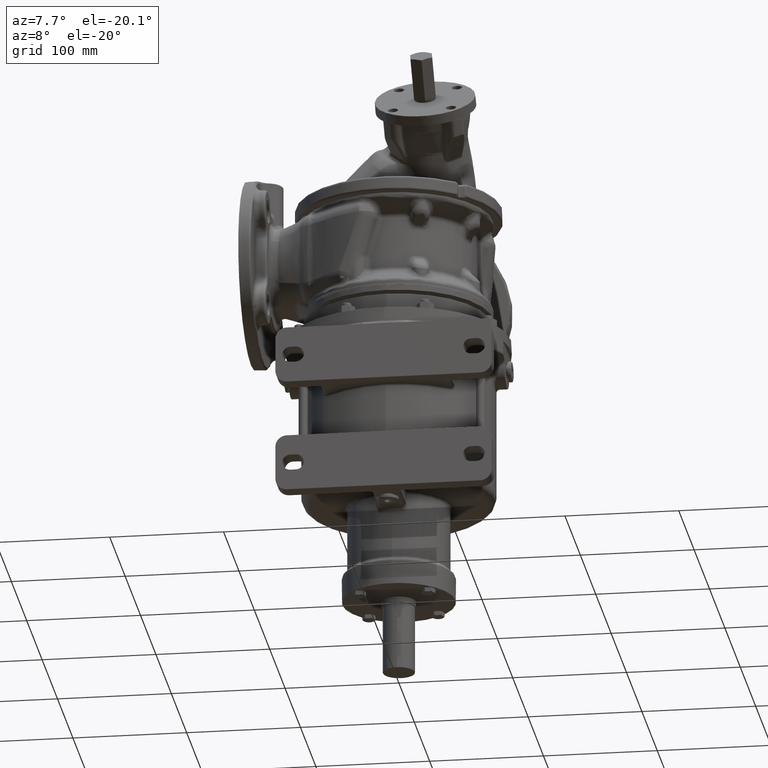
[diagram: clean part render]
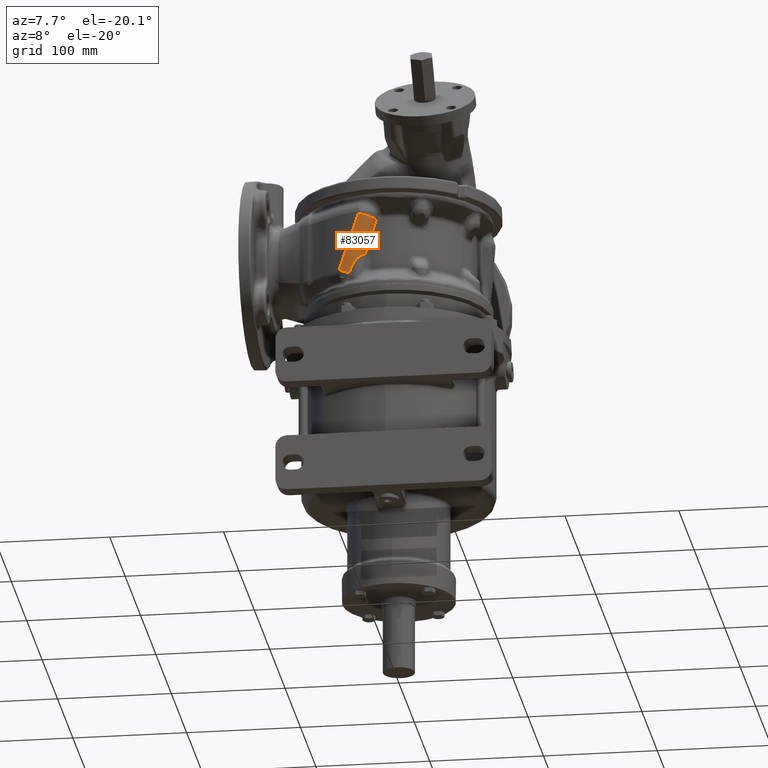
[diagram: same view with one face highlighted and labeled with its STEP entity id]
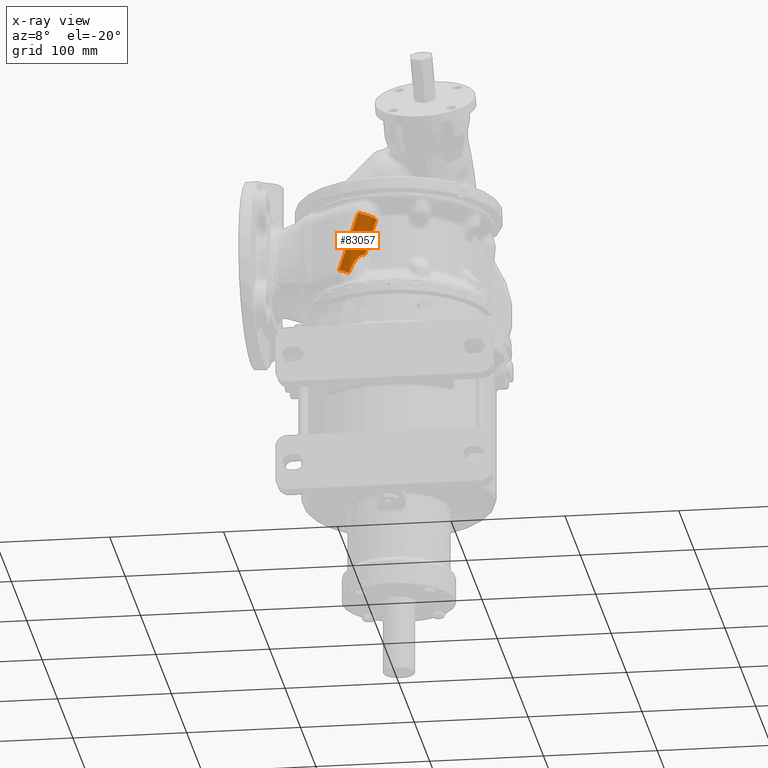
[diagram: x-ray of the same camera — body ghosted, the highlighted face saturated]
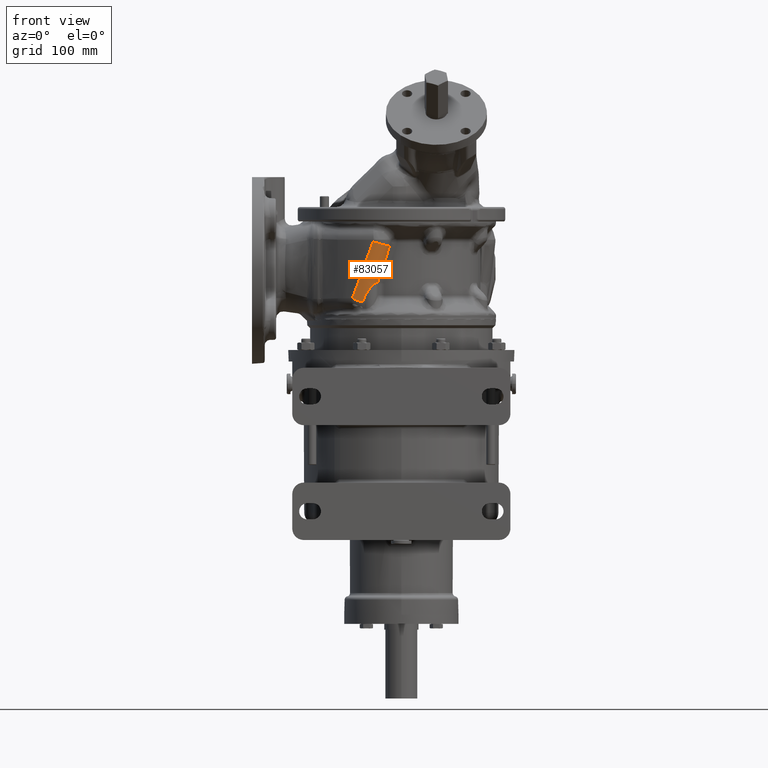
[diagram: same view with one face highlighted and labeled with its STEP entity id]
A machine part, auxiliary view. The second image highlights one B-rep face of the part: STEP entity #83057.
The next image is the same camera in x-ray: the body ghosted, the highlighted face saturated — about 0% of this face is hidden behind the body in this view.
A second angle (front view) of the same face is appended — the face is thin or edge-on in the first view.
In plain terms, the highlighted face is a freeform B-spline surface patch.
Its self-contained STEP definition (entity closure, byte-faithful):
#25267=CARTESIAN_POINT('',(-2.119083752131E1,-6.985662749622E1,
1.042988725771E2));
#25268=DIRECTION('',(-2.879499086329E-1,8.734890227052E-2,-9.536535111824E-1));
#25269=DIRECTION('',(9.251479776204E-1,-2.318483130488E-1,-3.005787405012E-1));
#25270=AXIS2_PLACEMENT_3D('',#25267,#25268,#25269);
#25277=CARTESIAN_POINT('',(-1.008906234369E1,-7.263880723871E1,
1.006919259756E2));
#25278=CARTESIAN_POINT('',(-1.078985260738E1,-7.254187529447E1,
9.846020433997E1));
#25279=CARTESIAN_POINT('',(-1.218267550414E1,-7.232862307558E1,
9.405559749812E1));
#25280=CARTESIAN_POINT('',(-1.424532093371E1,-7.195198624823E1,
8.762368334753E1));
#25281=CARTESIAN_POINT('',(-1.627874109743E1,-7.152073411645E1,
8.137264760107E1));
#25282=CARTESIAN_POINT('',(-1.828099006842E1,-7.103676528257E1,
7.530575880703E1));
#25283=CARTESIAN_POINT('',(-1.959321880926E1,-7.068062706580E1,
7.138771460428E1));
#25284=CARTESIAN_POINT('',(-2.024361991527E1,-7.049447879599E1,
6.946001937875E1));
#25286=CARTESIAN_POINT('',(-2.024361991527E1,-7.049447879599E1,
6.946001937875E1));
#25287=CARTESIAN_POINT('',(-2.028265244141E1,-7.057944893489E1,
6.944840208399E1));
#25288=CARTESIAN_POINT('',(-2.036385460238E1,-7.074851614572E1,
6.942259061334E1));
#25289=CARTESIAN_POINT('',(-2.049507986479E1,-7.099948136310E1,
6.937626179124E1));
#25290=CARTESIAN_POINT('',(-2.063560375749E1,-7.124704550409E1,
6.932200517078E1));
#25291=CARTESIAN_POINT('',(-2.078523971666E1,-7.149068710334E1,
6.925979353663E1));
#25292=CARTESIAN_POINT('',(-2.094375516216E1,-7.172984149864E1,
6.918954576563E1));
#25293=CARTESIAN_POINT('',(-2.111083589559E1,-7.196394059939E1,
6.911122346792E1));
#25294=CARTESIAN_POINT('',(-2.128647831170E1,-7.219291817449E1,
6.902465227762E1));
#25295=CARTESIAN_POINT('',(-2.147075879238E1,-7.241664083491E1,
6.892938874187E1));
#25296=CARTESIAN_POINT('',(-2.166363163958E1,-7.263491901958E1,
6.882519848515E1));
#25297=CARTESIAN_POINT('',(-2.186486209540E1,-7.284734901682E1,
6.871190175931E1));
#25298=CARTESIAN_POINT('',(-2.207416042233E1,-7.305351257679E1,
6.858930819848E1));
#25299=CARTESIAN_POINT('',(-2.229147786662E1,-7.325325120590E1,
6.845705078865E1));
#25300=CARTESIAN_POINT('',(-2.251682722843E1,-7.344638342729E1,
6.831457562305E1));
#25301=CARTESIAN_POINT('',(-2.275014119181E1,-7.363266867245E1,
6.816137341519E1));
#25302=CARTESIAN_POINT('',(-2.299129168347E1,-7.381190247343E1,
6.799710567792E1));
#25303=CARTESIAN_POINT('',(-2.324004900509E1,-7.398376623115E1,
6.782136529044E1));
#25304=CARTESIAN_POINT('',(-2.349643277534E1,-7.414810328202E1,
6.763348836223E1));
#25305=CARTESIAN_POINT('',(-2.376054178047E1,-7.430471395271E1,
6.743255228323E1));
#25306=CARTESIAN_POINT('',(-2.403238886517E1,-7.445335409061E1,
6.721769147344E1));
#25307=CARTESIAN_POINT('',(-2.431209425346E1,-7.459392638869E1,
6.698814963770E1));
#25308=CARTESIAN_POINT('',(-2.459963358144E1,-7.472617266228E1,
6.674308490818E1));
#25309=CARTESIAN_POINT('',(-2.489502644255E1,-7.484981101837E1,
6.648146234595E1));
#25310=CARTESIAN_POINT('',(-2.519829094349E1,-7.496447746739E1,
6.620200973924E1));
#25311=CARTESIAN_POINT('',(-2.550917950597E1,-7.506964889420E1,
6.590342122374E1));
#25312=CARTESIAN_POINT('',(-2.582885716744E1,-7.516549524378E1,
6.558360625117E1));
#25313=CARTESIAN_POINT('',(-2.615834389968E1,-7.525179686821E1,
6.523995288591E1));
#25314=CARTESIAN_POINT('',(-2.649773686445E1,-7.532798297398E1,
6.487056117297E1));
#25315=CARTESIAN_POINT('',(-2.684640504086E1,-7.539329892803E1,
6.447410117863E1));
#25316=CARTESIAN_POINT('',(-2.720384909244E1,-7.544702151187E1,
6.404880130017E1));
#25317=CARTESIAN_POINT('',(-2.757176776660E1,-7.548892548170E1,
6.359075501701E1));
#25318=CARTESIAN_POINT('',(-2.795116245173E1,-7.551823679605E1,
6.309572943665E1));
#25319=CARTESIAN_POINT('',(-2.834303405104E1,-7.553409602044E1,
6.255924872507E1));
#25320=CARTESIAN_POINT('',(-2.874797292995E1,-7.553547612549E1,
6.197691988562E1));
#25321=CARTESIAN_POINT('',(-2.916656786881E1,-7.552142406911E1,
6.134455744594E1));
#25322=CARTESIAN_POINT('',(-2.959896555483E1,-7.549059241117E1,
6.065719835102E1));
#25323=CARTESIAN_POINT('',(-3.004728987266E1,-7.544124744280E1,
5.990586808466E1));
#25324=CARTESIAN_POINT('',(-3.051352514976E1,-7.537147950794E1,
5.908140055060E1));
#25325=CARTESIAN_POINT('',(-3.099920843140E1,-7.527956301734E1,
5.817607391414E1));
#25326=CARTESIAN_POINT('',(-3.150597701057E1,-7.516248469024E1,
5.717774753204E1));
#25327=CARTESIAN_POINT('',(-3.203686068142E1,-7.501645254797E1,
5.607021893917E1));
#25328=CARTESIAN_POINT('',(-3.259513187581E1,-7.483785329357E1,
5.483849955027E1));
#25329=CARTESIAN_POINT('',(-3.318151078784E1,-7.462227332994E1,
5.346819274897E1));
#25330=CARTESIAN_POINT('',(-3.359258184066E1,-7.444988090632E1,
5.244865899843E1));
#25331=CARTESIAN_POINT('',(-3.380223933863E1,-7.435624518461E1,
5.191304944192E1));
#25333=CARTESIAN_POINT('',(-3.667130849395E1,-6.312064089320E1,
5.500002985504E1));
#25334=DIRECTION('',(3.071230605109E-1,-1.784297810731E-1,9.347931530176E-1));
#25335=DIRECTION('',(-5.023468348818E-1,-8.646662116009E-1,1.011235391720E-7));
#25336=AXIS2_PLACEMENT_3D('',#25333,#25334,#25335);
#26379=CARTESIAN_POINT('',(-4.269944369048E1,-7.349664824391E1,
5.499999200270E1));
#26380=CARTESIAN_POINT('',(-4.209453329801E1,-7.384808653237E1,
5.658122839575E1));
#26381=CARTESIAN_POINT('',(-4.087008063219E1,-7.453947813007E1,
5.979865612843E1));
#26382=CARTESIAN_POINT('',(-3.898993990028E1,-7.554013039292E1,
6.478936256183E1));
#26383=CARTESIAN_POINT('',(-3.706658945437E1,-7.650244973930E1,
6.994569092434E1));
#26384=CARTESIAN_POINT('',(-3.510053001209E1,-7.742440671011E1,
7.526769913601E1));
#26385=CARTESIAN_POINT('',(-3.309366089375E1,-7.830340906169E1,
8.075171796280E1));
#26386=CARTESIAN_POINT('',(-3.104666102593E1,-7.913752173536E1,
8.639719865210E1));
#26387=CARTESIAN_POINT('',(-2.896117818556E1,-7.992446256467E1,
9.220094422953E1));
#26388=CARTESIAN_POINT('',(-2.683867042338E1,-8.066214806754E1,
9.816019236751E1));
#26389=CARTESIAN_POINT('',(-2.539968859124E1,-8.111985255854E1,
1.022355281543E2));
#26390=CARTESIAN_POINT('',(-2.467426278014E1,-8.133990875491E1,
1.042988728250E2));
#44554=CARTESIAN_POINT('',(-4.269948010280E1,-7.349662848696E1,5.5E1));
#44555=VERTEX_POINT('',#44554);
#44830=VERTEX_POINT('',#26390);
#44847=VERTEX_POINT('',#25277);
#44848=VERTEX_POINT('',#25284);
#44944=VERTEX_POINT('',#25331);
#83005=CARTESIAN_POINT('',(-4.321399120608E1,-7.318807611986E1,
5.466259430350E1));
#83006=CARTESIAN_POINT('',(-4.235163491187E1,-7.369200024666E1,
5.728453560651E1));
#83007=CARTESIAN_POINT('',(-4.055229731575E1,-7.469463418803E1,
6.280246936697E1));
#83008=CARTESIAN_POINT('',(-3.789879776885E1,-7.603417178491E1,
7.107413415755E1));
#83009=CARTESIAN_POINT('',(-3.527877044731E1,-7.722725780911E1,
7.936659680613E1));
#83010=CARTESIAN_POINT('',(-3.272875193424E1,-7.827564143915E1,
8.754645758262E1));
#83011=CARTESIAN_POINT('',(-3.008765994574E1,-7.925002039021E1,
9.612611072789E1));
#83012=CARTESIAN_POINT('',(-2.823209977318E1,-7.985348006960E1,
1.022322930981E2));
#83013=CARTESIAN_POINT('',(-2.723159752710E1,-8.015581169475E1,
1.055469579723E2));
#83014=CARTESIAN_POINT('',(-2.718117428830E1,-8.017098989786E1,
1.057140668938E2));
#83015=CARTESIAN_POINT('',(-3.604097047749E1,-7.774151750981E1,
5.142825197833E1));
#83016=CARTESIAN_POINT('',(-3.516556491972E1,-7.825306726286E1,
5.408986857678E1));
#83017=CARTESIAN_POINT('',(-3.334042465990E1,-7.927004532447E1,
5.968696259730E1));
#83018=CARTESIAN_POINT('',(-3.065245858393E1,-8.062693784992E1,
6.806611166231E1));
#83019=CARTESIAN_POINT('',(-2.800133303772E1,-8.183415522696E1,
7.645702997284E1));
#83020=CARTESIAN_POINT('',(-2.542331712615E1,-8.289402779939E1,
8.472672066434E1));
#83021=CARTESIAN_POINT('',(-2.275523332862E1,-8.387834484658E1,
9.339407669344E1));
#83022=CARTESIAN_POINT('',(-2.088200964856E1,-8.448753470712E1,
9.955839903383E1));
#83023=CARTESIAN_POINT('',(-1.987230823013E1,-8.479264616760E1,
1.029035407449E2));
#83024=CARTESIAN_POINT('',(-1.982142219271E1,-8.480796368646E1,
1.030721834332E2));
#83025=CARTESIAN_POINT('',(-2.795020818266E1,-7.408781017670E1,
4.946942245108E1));
#83026=CARTESIAN_POINT('',(-2.707779678428E1,-7.459761022638E1,
5.212193553517E1));
#83027=CARTESIAN_POINT('',(-2.525857695724E1,-7.561129702315E1,
5.770086619844E1));
#83028=CARTESIAN_POINT('',(-2.257851924185E1,-7.696420745245E1,
6.605535294837E1));
#83029=CARTESIAN_POINT('',(-1.993452919727E1,-7.816818238422E1,
7.442368056302E1));
#83030=CARTESIAN_POINT('',(-1.736293730137E1,-7.922541881366E1,
8.267275974015E1));
#83031=CARTESIAN_POINT('',(-1.470104678655E1,-8.020745556022E1,
9.131999230313E1));
#83032=CARTESIAN_POINT('',(-1.283187600623E1,-8.081533062812E1,
9.747097440124E1));
#83033=CARTESIAN_POINT('',(-1.182428534202E1,-8.111980425414E1,
1.008091231884E2));
#83034=CARTESIAN_POINT('',(-1.177350549396E1,-8.113508980694E1,
1.009774139532E2));
#83035=CARTESIAN_POINT('',(-2.577739368519E1,-6.531388307043E1,
5.044107340918E1));
#83036=CARTESIAN_POINT('',(-2.492149017630E1,-6.581403636917E1,
5.304339550817E1));
#83037=CARTESIAN_POINT('',(-2.313491184808E1,-6.680957722608E1,
5.852218497810E1));
#83038=CARTESIAN_POINT('',(-2.049845580036E1,-6.814053291122E1,
6.674069941692E1));
#83039=CARTESIAN_POINT('',(-1.789380637097E1,-6.932663106320E1,
7.498447631038E1));
#83040=CARTESIAN_POINT('',(-1.535763240945E1,-7.036933347771E1,
8.311991671369E1));
#83041=CARTESIAN_POINT('',(-1.272988771433E1,-7.133879809775E1,
9.165620129040E1));
#83042=CARTESIAN_POINT('',(-1.088306204401E1,-7.193942423571E1,
9.773363378181E1));
#83043=CARTESIAN_POINT('',(-9.887108735432E0,-7.224038124838E1,
1.010332280365E2));
#83044=CARTESIAN_POINT('',(-9.836914347879E0,-7.225549056065E1,
1.011995785192E2));
#83045=(BOUNDED_SURFACE()B_SPLINE_SURFACE(3,3,((#83005,#83006,#83007,#83008,
#83009,#83010,#83011,#83012,#83013,#83014),(#83015,#83016,#83017,#83018,#83019,
#83020,#83021,#83022,#83023,#83024),(#83025,#83026,#83027,#83028,#83029,#83030,
#83031,#83032,#83033,#83034),(#83035,#83036,#83037,#83038,#83039,#83040,#83041,
#83042,#83043,#83044)),.UNSPECIFIED.,.F.,.F.,.F.)B_SPLINE_SURFACE_WITH_KNOTS((4,
4),(4,1,1,1,1,1,1,4),(0.E0,1.E0),(9.115155240984E-1,9.254000502088E-1,
9.406837971689E-1,9.551018750252E-1,9.689772895983E-1,9.835735070431E-1,1.E0,
1.000872069491E0),.UNSPECIFIED.)GEOMETRIC_REPRESENTATION_ITEM()RATIONAL_B_SPLINE_SURFACE(((1.267778940437E0,1.267778940437E0,1.267778940437E0,1.267778940437E0,
1.267778940437E0,1.267778940437E0,1.267778940437E0,1.267778940437E0,
1.267778940437E0,1.267778940437E0),(9.107403531877E-1,9.107403531877E-1,
9.107403531877E-1,9.107403531877E-1,9.107403531877E-1,9.107403531877E-1,
9.107403531877E-1,9.107403531877E-1,9.107403531877E-1,9.107403531877E-1),(
9.107403531877E-1,9.107403531877E-1,9.107403531877E-1,9.107403531877E-1,
9.107403531877E-1,9.107403531877E-1,9.107403531877E-1,9.107403531877E-1,
9.107403531877E-1,9.107403531877E-1),(1.267778940437E0,1.267778940437E0,
1.267778940437E0,1.267778940437E0,1.267778940437E0,1.267778940437E0,
1.267778940437E0,1.267778940437E0,1.267778940437E0,1.267778940437E0)))REPRESENTATION_ITEM('')SURFACE());
#83047=ORIENTED_EDGE('',*,*,#83046,.T.);
#83049=ORIENTED_EDGE('',*,*,#83048,.T.);
#83051=ORIENTED_EDGE('',*,*,#83050,.F.);
#83053=ORIENTED_EDGE('',*,*,#83052,.T.);
#83054=ORIENTED_EDGE('',*,*,#82997,.F.);
#83055=EDGE_LOOP('',(#83047,#83049,#83051,#83053,#83054));
#83056=FACE_OUTER_BOUND('',#83055,.F.);
#83057=ADVANCED_FACE('',(#83056),#83045,.T.);
#25271=CIRCLE('',#25270,1.2E1);
#25285=B_SPLINE_CURVE_WITH_KNOTS('',3,(#25277,#25278,#25279,#25280,#25281,
#25282,#25283,#25284),.UNSPECIFIED.,.F.,.F.,(4,1,1,1,1,4),(0.E0,2.E-1,4.E-1,
6.E-1,8.E-1,1.E0),.UNSPECIFIED.);
#25332=B_SPLINE_CURVE_WITH_KNOTS('',3,(#25286,#25287,#25288,#25289,#25290,
#25291,#25292,#25293,#25294,#25295,#25296,#25297,#25298,#25299,#25300,#25301,
#25302,#25303,#25304,#25305,#25306,#25307,#25308,#25309,#25310,#25311,#25312,
#25313,#25314,#25315,#25316,#25317,#25318,#25319,#25320,#25321,#25322,#25323,
#25324,#25325,#25326,#25327,#25328,#25329,#25330,#25331),.UNSPECIFIED.,.F.,.F.,(
4,1,1,1,1,1,1,1,1,1,1,1,1,1,1,1,1,1,1,1,1,1,1,1,1,1,1,1,1,1,1,1,1,1,1,1,1,1,1,1,
1,1,1,4),(0.E0,2.325581395349E-2,4.651162790698E-2,6.976744186047E-2,
9.302325581395E-2,1.162790697674E-1,1.395348837209E-1,1.627906976744E-1,
1.860465116279E-1,2.093023255814E-1,2.325581395349E-1,2.558139534884E-1,
2.790697674419E-1,3.023255813953E-1,3.255813953488E-1,3.488372093023E-1,
3.720930232558E-1,3.953488372093E-1,4.186046511628E-1,4.418604651163E-1,
4.651162790698E-1,4.883720930233E-1,5.116279069767E-1,5.348837209302E-1,
5.581395348837E-1,5.813953488372E-1,6.046511627907E-1,6.279069767442E-1,
6.511627906977E-1,6.744186046512E-1,6.976744186047E-1,7.209302325581E-1,
7.441860465116E-1,7.674418604651E-1,7.906976744186E-1,8.139534883721E-1,
8.372093023256E-1,8.604651162791E-1,8.837209302326E-1,9.069767441860E-1,
9.302325581395E-1,9.534883720930E-1,9.767441860465E-1,1.E0),.UNSPECIFIED.);
#25337=CIRCLE('',#25336,1.2E1);
#26391=B_SPLINE_CURVE_WITH_KNOTS('',3,(#26379,#26380,#26381,#26382,#26383,
#26384,#26385,#26386,#26387,#26388,#26389,#26390),.UNSPECIFIED.,.F.,.F.,(4,1,1,
1,1,1,1,1,1,4),(0.E0,1.111111111111E-1,2.222222222222E-1,3.333333333333E-1,
4.444444444444E-1,5.555555555556E-1,6.666666666667E-1,7.777777777778E-1,
8.888888888889E-1,1.E0),.UNSPECIFIED.);
#82997=EDGE_CURVE('',#44847,#44830,#25271,.T.);
#83046=EDGE_CURVE('',#44847,#44848,#25285,.T.);
#83048=EDGE_CURVE('',#44848,#44944,#25332,.T.);
#83050=EDGE_CURVE('',#44555,#44944,#25337,.T.);
#83052=EDGE_CURVE('',#44555,#44830,#26391,.T.);